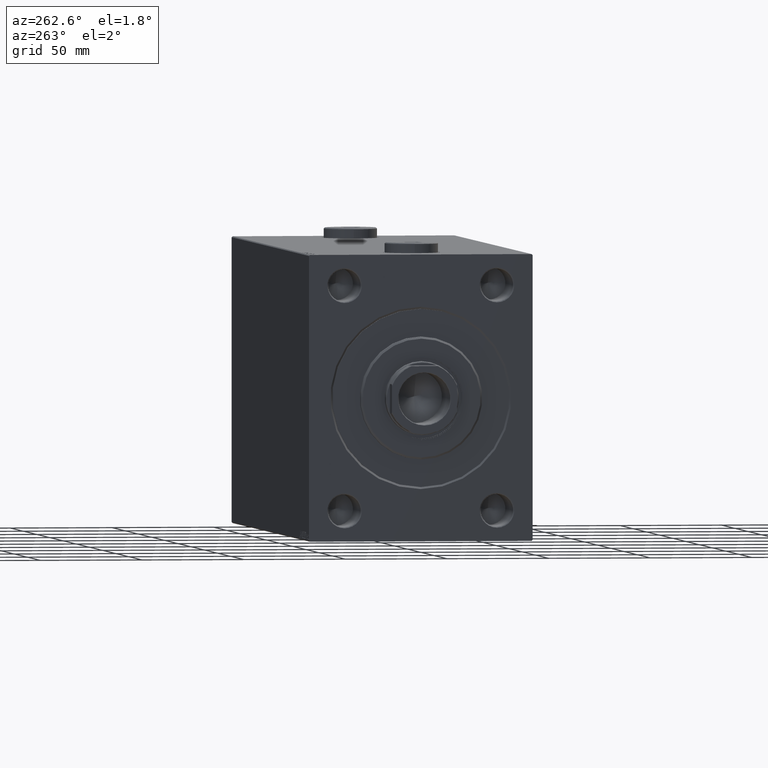
[diagram: clean part render]
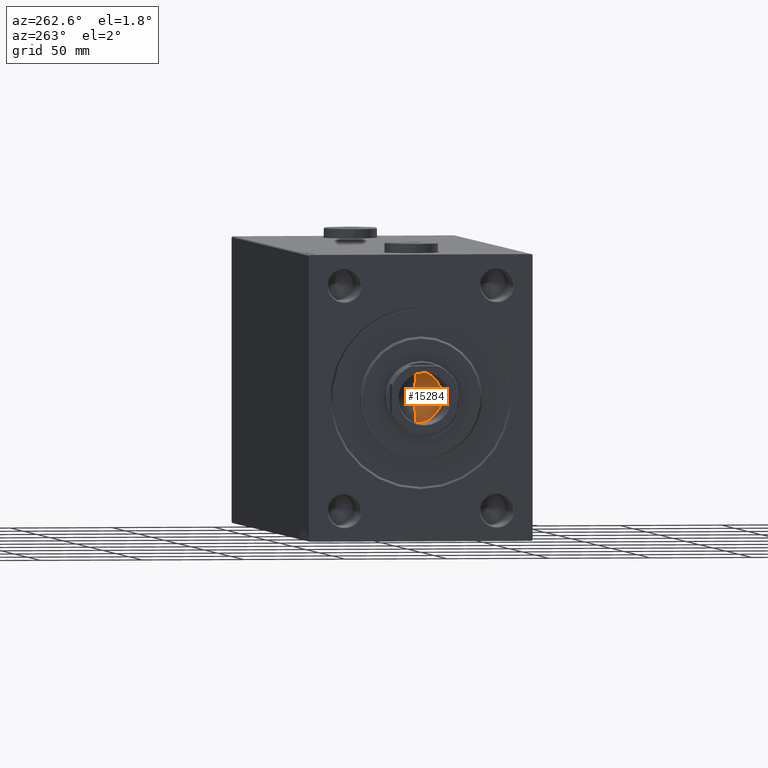
[diagram: same view with one face highlighted and labeled with its STEP entity id]
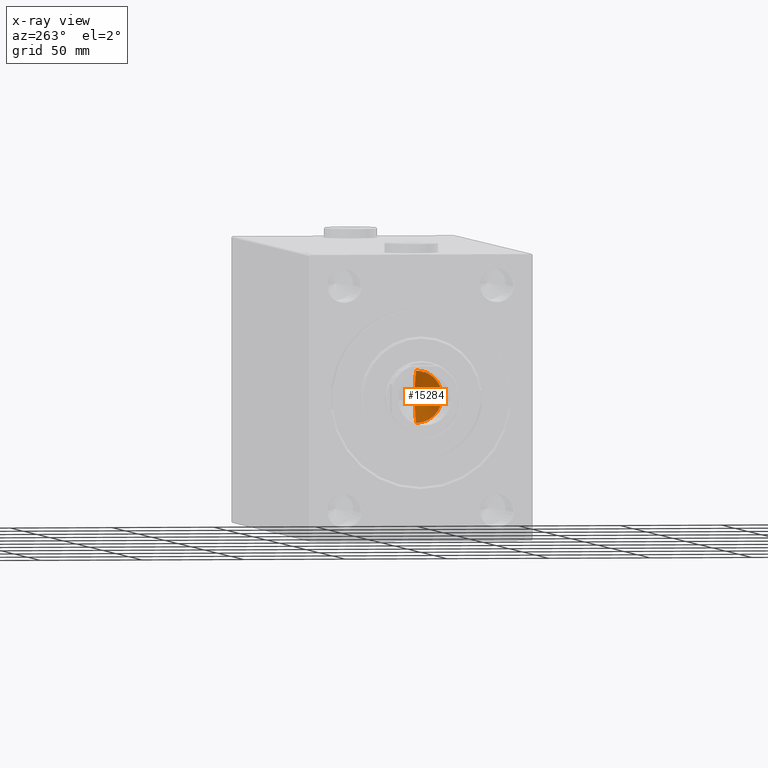
[diagram: x-ray of the same camera — body ghosted, the highlighted face saturated]
A machine part, auxiliary view. The second image highlights one B-rep face of the part: STEP entity #15284.
The next image is the same camera in x-ray: the body ghosted, the highlighted face saturated — about 0% of this face is hidden behind the body in this view.
In plain terms, the highlighted conical surface has half-angle 59 deg.
Its self-contained STEP definition (entity closure, byte-faithful):
#1420 = VECTOR ( 'NONE', #23025, 1000.000000000000000 ) ;
#6971 = CARTESIAN_POINT ( 'NONE',  ( 12.74999999999999467, 0.000000000000000000, 254.0000000000000000 ) ) ;
#11393 = DIRECTION ( 'NONE',  ( -0.000000000000000000, -0.000000000000000000, 1.000000000000000000 ) ) ;
#12579 = VERTEX_POINT ( 'NONE', #6971 ) ;
#13604 = DIRECTION ( 'NONE',  ( 1.000000000000000000, 0.000000000000000000, 0.000000000000000000 ) ) ;
#15284 = ADVANCED_FACE ( 'NONE', ( #43337 ), #19470, .F. ) ;
#16431 = EDGE_CURVE ( 'NONE', #23632, #12579, #45174, .T. ) ;
#18609 = CARTESIAN_POINT ( 'NONE',  ( 0.000000000000000000, 0.000000000000000000, 254.0000000000000000 ) ) ;
#19470 = CONICAL_SURFACE ( 'NONE', #40881, 12.74999999999999467, 1.029744258676655422 ) ;
#23025 = DIRECTION ( 'NONE',  ( -0.8571673007021127777, 1.049727191138619189E-16, 0.5150380749100533784 ) ) ;
#23632 = VERTEX_POINT ( 'NONE', #24814 ) ;
#23840 = EDGE_CURVE ( 'NONE', #40451, #12579, #29223, .T. ) ;
#24814 = CARTESIAN_POINT ( 'NONE',  ( -1.026246296720136938E-14, 0.000000000000000000, 246.3390271073986355 ) ) ;
#25784 = DIRECTION ( 'NONE',  ( -0.000000000000000000, -0.000000000000000000, 1.000000000000000000 ) ) ;
#27395 = CARTESIAN_POINT ( 'NONE',  ( 12.74999999999999467, 0.000000000000000000, 254.0000000000000000 ) ) ;
#29223 = CIRCLE ( 'NONE', #33606, 12.74999999999999467 ) ;
#30018 = ORIENTED_EDGE ( 'NONE', *, *, #23840, .T. ) ;
#30171 = DIRECTION ( 'NONE',  ( 0.8571673007021127777, 0.000000000000000000, 0.5150380749100533784 ) ) ;
#30591 = ORIENTED_EDGE ( 'NONE', *, *, #36467, .T. ) ;
#30744 = ORIENTED_EDGE ( 'NONE', *, *, #16431, .F. ) ;
#32048 = VECTOR ( 'NONE', #30171, 1000.000000000000000 ) ;
#32428 = CARTESIAN_POINT ( 'NONE',  ( 0.000000000000000000, 0.000000000000000000, 254.0000000000000000 ) ) ;
#33283 = EDGE_LOOP ( 'NONE', ( #30744, #30591, #30018 ) ) ;
#33606 = AXIS2_PLACEMENT_3D ( 'NONE', #32428, #11393, #13604 ) ;
#33879 = LINE ( 'NONE', #44515, #1420 ) ;
#36467 = EDGE_CURVE ( 'NONE', #23632, #40451, #33879, .T. ) ;
#40317 = DIRECTION ( 'NONE',  ( 1.000000000000000000, 0.000000000000000000, 0.000000000000000000 ) ) ;
#40451 = VERTEX_POINT ( 'NONE', #41807 ) ;
#40881 = AXIS2_PLACEMENT_3D ( 'NONE', #18609, #25784, #40317 ) ;
#41807 = CARTESIAN_POINT ( 'NONE',  ( -12.74999999999999467, 1.561424668912874519E-15, 254.0000000000000000 ) ) ;
#43337 = FACE_OUTER_BOUND ( 'NONE', #33283, .T. ) ;
#44515 = CARTESIAN_POINT ( 'NONE',  ( -12.74999999999999467, 1.561424668912874519E-15, 254.0000000000000000 ) ) ;
#45174 = LINE ( 'NONE', #27395, #32048 ) ;